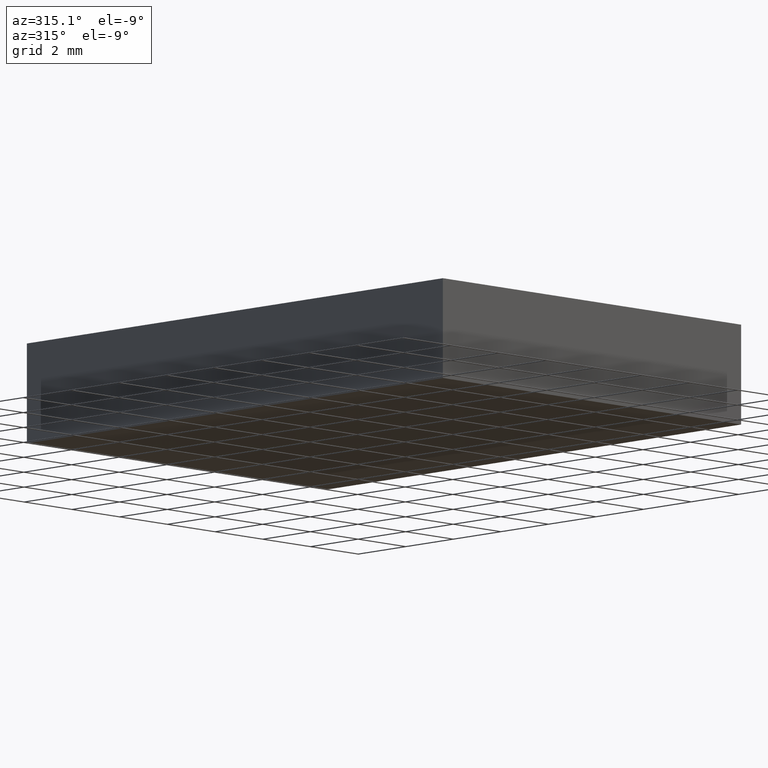
[diagram: clean part render]
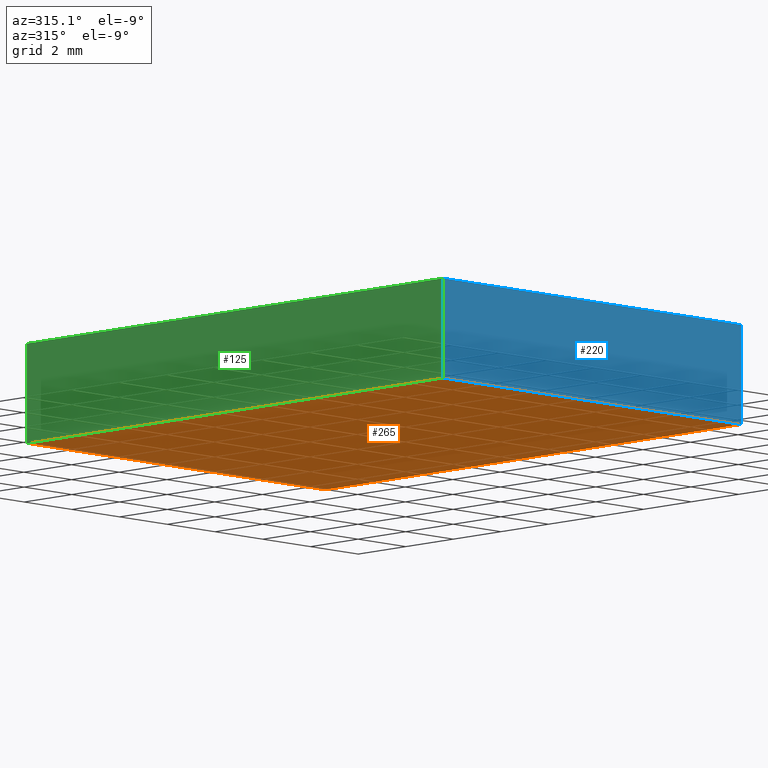
[diagram: same view with three faces highlighted in distinct colors, each labeled with its STEP entity id]
A machine part, auxiliary view with three faces highlighted in distinct colors.
Their STEP definitions:

[orange] entity #265 — the highlighted planar face has unit normal (-0, 0, 1).
#1 = PLANE ( 'NONE',  #244 ) ;
#10 = VERTEX_POINT ( 'NONE', #37 ) ;
#19 = VECTOR ( 'NONE', #50, 1000.000000000000000 ) ;
#25 = CARTESIAN_POINT ( 'NONE',  ( 6.148373983739839200, 7.520325203252024700, 0.0000000000000000000 ) ) ;
#37 = CARTESIAN_POINT ( 'NONE',  ( -6.351626016260160800, -9.979674796747977100, 0.0000000000000000000 ) ) ;
#47 = DIRECTION ( 'NONE',  ( 9.912705577010325500E-017, -1.000000000000000000, 0.0000000000000000000 ) ) ;
#49 = CARTESIAN_POINT ( 'NONE',  ( -6.351626016260162500, 7.520325203252024700, 0.0000000000000000000 ) ) ;
#50 = DIRECTION ( 'NONE',  ( 1.000000000000000000, 0.0000000000000000000, 0.0000000000000000000 ) ) ;
#53 = DIRECTION ( 'NONE',  ( -1.000000000000000000, -0.0000000000000000000, -0.0000000000000000000 ) ) ;
#55 = CARTESIAN_POINT ( 'NONE',  ( -6.351626016260162500, 7.520325203252024700, 0.0000000000000000000 ) ) ;
#57 = ORIENTED_EDGE ( 'NONE', *, *, #257, .F. ) ;
#69 = DIRECTION ( 'NONE',  ( -4.956352788505162800E-017, 1.000000000000000000, -0.0000000000000000000 ) ) ;
#86 = EDGE_CURVE ( 'NONE', #160, #10, #281, .T. ) ;
#91 = ORIENTED_EDGE ( 'NONE', *, *, #232, .F. ) ;
#96 = EDGE_LOOP ( 'NONE', ( #290, #91, #229, #57 ) ) ;
#101 = CARTESIAN_POINT ( 'NONE',  ( -6.351626016260160800, -9.979674796747977100, 0.0000000000000000000 ) ) ;
#121 = EDGE_CURVE ( 'NONE', #201, #285, #183, .T. ) ;
#127 = CARTESIAN_POINT ( 'NONE',  ( 0.0000000000000000000, 0.0000000000000000000, 0.0000000000000000000 ) ) ;
#145 = CARTESIAN_POINT ( 'NONE',  ( 6.148373983739839200, 7.520325203252024700, 0.0000000000000000000 ) ) ;
#147 = CARTESIAN_POINT ( 'NONE',  ( -6.351626016260162500, 7.520325203252024700, 0.0000000000000000000 ) ) ;
#160 = VERTEX_POINT ( 'NONE', #147 ) ;
#169 = CARTESIAN_POINT ( 'NONE',  ( 6.148373983739840100, -9.979674796747977100, 0.0000000000000000000 ) ) ;
#173 = DIRECTION ( 'NONE',  ( -0.0000000000000000000, 0.0000000000000000000, 1.000000000000000000 ) ) ;
#183 = LINE ( 'NONE', #145, #236 ) ;
#200 = LINE ( 'NONE', #101, #19 ) ;
#201 = VERTEX_POINT ( 'NONE', #169 ) ;
#204 = VECTOR ( 'NONE', #47, 1000.000000000000000 ) ;
#229 = ORIENTED_EDGE ( 'NONE', *, *, #121, .F. ) ;
#232 = EDGE_CURVE ( 'NONE', #285, #160, #258, .T. ) ;
#236 = VECTOR ( 'NONE', #69, 1000.000000000000000 ) ;
#244 = AXIS2_PLACEMENT_3D ( 'NONE', #127, #173, #287 ) ;
#257 = EDGE_CURVE ( 'NONE', #10, #201, #200, .T. ) ;
#258 = LINE ( 'NONE', #55, #274 ) ;
#265 = ADVANCED_FACE ( 'NONE', ( #296 ), #1, .F. ) ;
#274 = VECTOR ( 'NONE', #53, 1000.000000000000000 ) ;
#281 = LINE ( 'NONE', #49, #204 ) ;
#285 = VERTEX_POINT ( 'NONE', #25 ) ;
#287 = DIRECTION ( 'NONE',  ( 1.000000000000000000, 0.0000000000000000000, 0.0000000000000000000 ) ) ;
#290 = ORIENTED_EDGE ( 'NONE', *, *, #86, .F. ) ;
#296 = FACE_OUTER_BOUND ( 'NONE', #96, .T. ) ;

[blue] entity #220 — the highlighted planar face has unit normal (0, 1, 0).
#10 = VERTEX_POINT ( 'NONE', #37 ) ;
#18 = CARTESIAN_POINT ( 'NONE',  ( -6.351626016260160800, -9.979674796747977100, 3.000000000000000000 ) ) ;
#19 = VECTOR ( 'NONE', #50, 1000.000000000000000 ) ;
#20 = LINE ( 'NONE', #299, #270 ) ;
#24 = ORIENTED_EDGE ( 'NONE', *, *, #214, .F. ) ;
#29 = ORIENTED_EDGE ( 'NONE', *, *, #44, .F. ) ;
#37 = CARTESIAN_POINT ( 'NONE',  ( -6.351626016260160800, -9.979674796747977100, 0.0000000000000000000 ) ) ;
#44 = EDGE_CURVE ( 'NONE', #196, #201, #20, .T. ) ;
#50 = DIRECTION ( 'NONE',  ( 1.000000000000000000, 0.0000000000000000000, 0.0000000000000000000 ) ) ;
#76 = VECTOR ( 'NONE', #247, 1000.000000000000000 ) ;
#92 = CARTESIAN_POINT ( 'NONE',  ( -6.351626016260160800, -9.979674796747977100, 3.000000000000000000 ) ) ;
#101 = CARTESIAN_POINT ( 'NONE',  ( -6.351626016260160800, -9.979674796747977100, 0.0000000000000000000 ) ) ;
#103 = AXIS2_PLACEMENT_3D ( 'NONE', #314, #151, #291 ) ;
#128 = PLANE ( 'NONE',  #103 ) ;
#137 = DIRECTION ( 'NONE',  ( -0.0000000000000000000, -0.0000000000000000000, -1.000000000000000000 ) ) ;
#150 = VECTOR ( 'NONE', #311, 1000.000000000000000 ) ;
#151 = DIRECTION ( 'NONE',  ( 0.0000000000000000000, 1.000000000000000000, 0.0000000000000000000 ) ) ;
#156 = ORIENTED_EDGE ( 'NONE', *, *, #257, .T. ) ;
#161 = EDGE_CURVE ( 'NONE', #164, #10, #216, .T. ) ;
#164 = VERTEX_POINT ( 'NONE', #18 ) ;
#169 = CARTESIAN_POINT ( 'NONE',  ( 6.148373983739840100, -9.979674796747977100, 0.0000000000000000000 ) ) ;
#179 = FACE_OUTER_BOUND ( 'NONE', #297, .T. ) ;
#192 = CARTESIAN_POINT ( 'NONE',  ( -6.351626016260160800, -9.979674796747977100, 3.000000000000000000 ) ) ;
#194 = CARTESIAN_POINT ( 'NONE',  ( 6.148373983739840100, -9.979674796747977100, 3.000000000000000000 ) ) ;
#196 = VERTEX_POINT ( 'NONE', #194 ) ;
#200 = LINE ( 'NONE', #101, #19 ) ;
#201 = VERTEX_POINT ( 'NONE', #169 ) ;
#214 = EDGE_CURVE ( 'NONE', #164, #196, #308, .T. ) ;
#216 = LINE ( 'NONE', #192, #150 ) ;
#220 = ADVANCED_FACE ( 'NONE', ( #179 ), #128, .F. ) ;
#247 = DIRECTION ( 'NONE',  ( 1.000000000000000000, 0.0000000000000000000, 0.0000000000000000000 ) ) ;
#257 = EDGE_CURVE ( 'NONE', #10, #201, #200, .T. ) ;
#270 = VECTOR ( 'NONE', #137, 1000.000000000000000 ) ;
#278 = ORIENTED_EDGE ( 'NONE', *, *, #161, .T. ) ;
#291 = DIRECTION ( 'NONE',  ( 0.0000000000000000000, -0.0000000000000000000, 1.000000000000000000 ) ) ;
#297 = EDGE_LOOP ( 'NONE', ( #156, #29, #24, #278 ) ) ;
#299 = CARTESIAN_POINT ( 'NONE',  ( 6.148373983739840100, -9.979674796747977100, 3.000000000000000000 ) ) ;
#308 = LINE ( 'NONE', #92, #76 ) ;
#311 = DIRECTION ( 'NONE',  ( -0.0000000000000000000, -0.0000000000000000000, -1.000000000000000000 ) ) ;
#314 = CARTESIAN_POINT ( 'NONE',  ( -6.351626016260160800, -9.979674796747977100, 3.000000000000000000 ) ) ;

[green] entity #125 — the highlighted planar face has unit normal (1, 0, -0).
#10 = VERTEX_POINT ( 'NONE', #37 ) ;
#15 = CARTESIAN_POINT ( 'NONE',  ( -6.351626016260162500, 7.520325203252024700, 3.000000000000000000 ) ) ;
#18 = CARTESIAN_POINT ( 'NONE',  ( -6.351626016260160800, -9.979674796747977100, 3.000000000000000000 ) ) ;
#37 = CARTESIAN_POINT ( 'NONE',  ( -6.351626016260160800, -9.979674796747977100, 0.0000000000000000000 ) ) ;
#47 = DIRECTION ( 'NONE',  ( 9.912705577010325500E-017, -1.000000000000000000, 0.0000000000000000000 ) ) ;
#48 = LINE ( 'NONE', #15, #293 ) ;
#49 = CARTESIAN_POINT ( 'NONE',  ( -6.351626016260162500, 7.520325203252024700, 0.0000000000000000000 ) ) ;
#62 = EDGE_CURVE ( 'NONE', #68, #164, #48, .T. ) ;
#65 = CARTESIAN_POINT ( 'NONE',  ( -6.351626016260162500, 7.520325203252024700, 3.000000000000000000 ) ) ;
#68 = VERTEX_POINT ( 'NONE', #65 ) ;
#73 = DIRECTION ( 'NONE',  ( 1.000000000000000000, 9.912705577010325500E-017, -0.0000000000000000000 ) ) ;
#74 = CARTESIAN_POINT ( 'NONE',  ( -6.351626016260162500, 7.520325203252024700, 3.000000000000000000 ) ) ;
#86 = EDGE_CURVE ( 'NONE', #160, #10, #281, .T. ) ;
#88 = ORIENTED_EDGE ( 'NONE', *, *, #304, .T. ) ;
#94 = PLANE ( 'NONE',  #152 ) ;
#97 = CARTESIAN_POINT ( 'NONE',  ( -6.351626016260162500, 7.520325203252024700, 3.000000000000000000 ) ) ;
#100 = ORIENTED_EDGE ( 'NONE', *, *, #161, .F. ) ;
#116 = EDGE_LOOP ( 'NONE', ( #136, #100, #172, #88 ) ) ;
#122 = VECTOR ( 'NONE', #180, 1000.000000000000000 ) ;
#125 = ADVANCED_FACE ( 'NONE', ( #175 ), #94, .F. ) ;
#136 = ORIENTED_EDGE ( 'NONE', *, *, #86, .T. ) ;
#147 = CARTESIAN_POINT ( 'NONE',  ( -6.351626016260162500, 7.520325203252024700, 0.0000000000000000000 ) ) ;
#150 = VECTOR ( 'NONE', #311, 1000.000000000000000 ) ;
#152 = AXIS2_PLACEMENT_3D ( 'NONE', #74, #73, #240 ) ;
#160 = VERTEX_POINT ( 'NONE', #147 ) ;
#161 = EDGE_CURVE ( 'NONE', #164, #10, #216, .T. ) ;
#164 = VERTEX_POINT ( 'NONE', #18 ) ;
#172 = ORIENTED_EDGE ( 'NONE', *, *, #62, .F. ) ;
#175 = FACE_OUTER_BOUND ( 'NONE', #116, .T. ) ;
#180 = DIRECTION ( 'NONE',  ( -0.0000000000000000000, -0.0000000000000000000, -1.000000000000000000 ) ) ;
#188 = DIRECTION ( 'NONE',  ( 9.912705577010325500E-017, -1.000000000000000000, 0.0000000000000000000 ) ) ;
#192 = CARTESIAN_POINT ( 'NONE',  ( -6.351626016260160800, -9.979674796747977100, 3.000000000000000000 ) ) ;
#204 = VECTOR ( 'NONE', #47, 1000.000000000000000 ) ;
#216 = LINE ( 'NONE', #192, #150 ) ;
#240 = DIRECTION ( 'NONE',  ( -9.912705577010325500E-017, 1.000000000000000000, 0.0000000000000000000 ) ) ;
#248 = LINE ( 'NONE', #97, #122 ) ;
#281 = LINE ( 'NONE', #49, #204 ) ;
#293 = VECTOR ( 'NONE', #188, 1000.000000000000000 ) ;
#304 = EDGE_CURVE ( 'NONE', #68, #160, #248, .T. ) ;
#311 = DIRECTION ( 'NONE',  ( -0.0000000000000000000, -0.0000000000000000000, -1.000000000000000000 ) ) ;